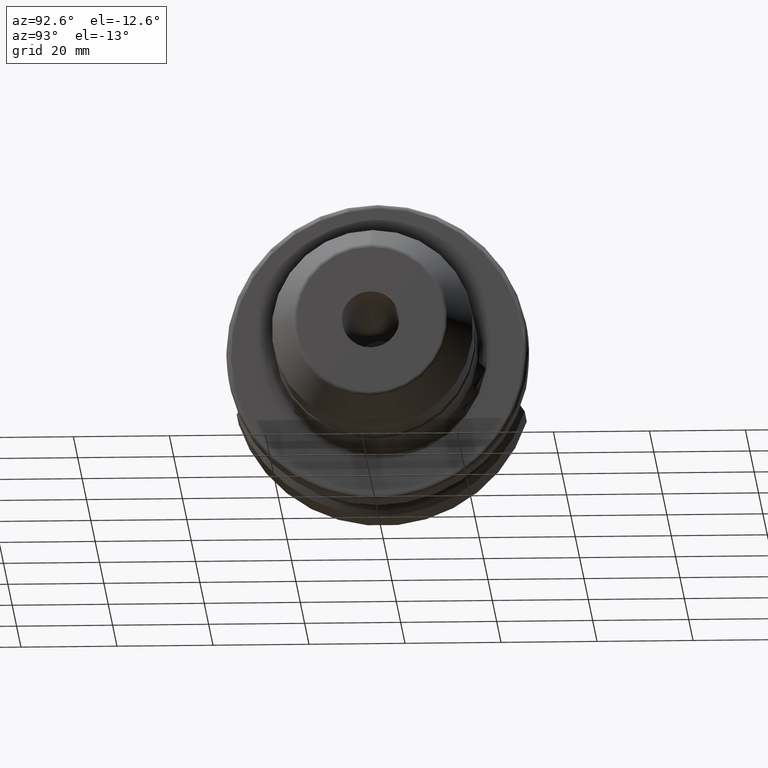
[diagram: clean part render]
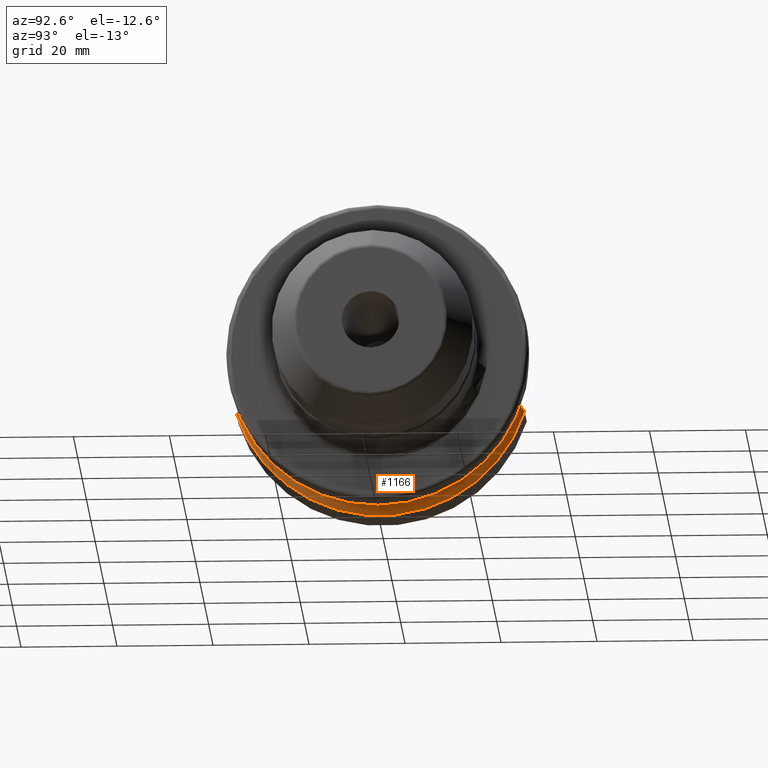
[diagram: same view with one face highlighted and labeled with its STEP entity id]
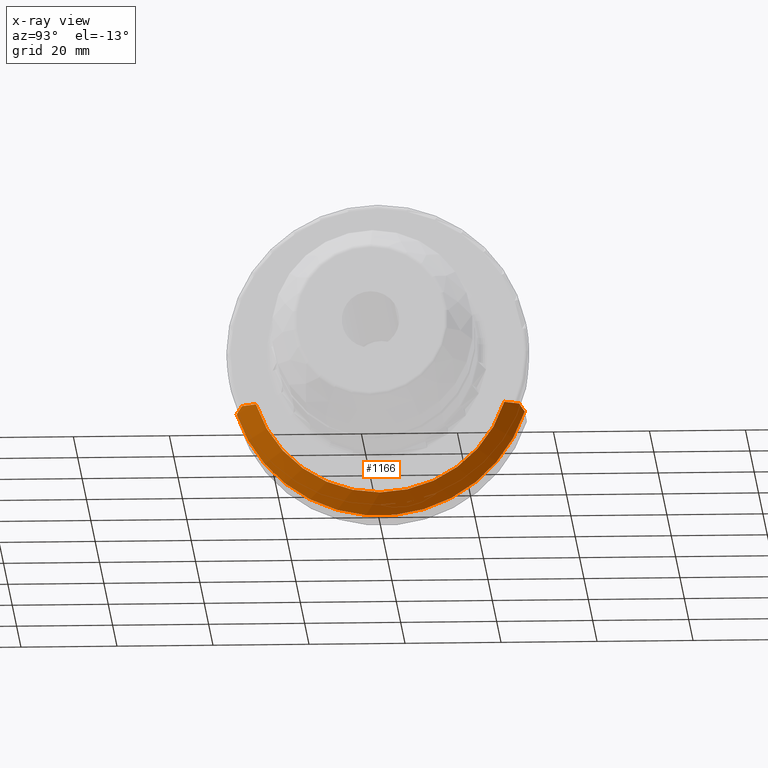
[diagram: x-ray of the same camera — body ghosted, the highlighted face saturated]
A machine part, auxiliary view. The second image highlights one B-rep face of the part: STEP entity #1166.
The next image is the same camera in x-ray: the body ghosted, the highlighted face saturated — about 0% of this face is hidden behind the body in this view.
In plain terms, the highlighted conical surface has half-angle 60.125 deg.
Its self-contained STEP definition (entity closure, byte-faithful):
#15=(
BOUNDED_CURVE()
B_SPLINE_CURVE(2,(#1988,#1989,#1990),.UNSPECIFIED.,.F.,.F.)
B_SPLINE_CURVE_WITH_KNOTS((3,3),(0.,0.199960249921199),.UNSPECIFIED.)
CURVE()
GEOMETRIC_REPRESENTATION_ITEM()
RATIONAL_B_SPLINE_CURVE((1.,1.00151196517195,1.00204724221686))
REPRESENTATION_ITEM('')
);
#18=(
BOUNDED_CURVE()
B_SPLINE_CURVE(2,(#2137,#2138,#2139),.UNSPECIFIED.,.F.,.F.)
B_SPLINE_CURVE_WITH_KNOTS((3,3),(0.419137956116462,0.619098206037661),
 .UNSPECIFIED.)
CURVE()
GEOMETRIC_REPRESENTATION_ITEM()
RATIONAL_B_SPLINE_CURVE((1.00204724221686,1.00151196517195,1.))
REPRESENTATION_ITEM('')
);
#19=(
BOUNDED_CURVE()
B_SPLINE_CURVE(2,(#2143,#2144,#2145),.UNSPECIFIED.,.F.,.F.)
B_SPLINE_CURVE_WITH_KNOTS((3,3),(0.173905198239554,0.523582790832813),
 .UNSPECIFIED.)
CURVE()
GEOMETRIC_REPRESENTATION_ITEM()
RATIONAL_B_SPLINE_CURVE((1.00136360040299,1.00205272099915,1.))
REPRESENTATION_ITEM('')
);
#20=(
BOUNDED_CURVE()
B_SPLINE_CURVE(2,(#2148,#2149,#2150),.UNSPECIFIED.,.F.,.F.)
B_SPLINE_CURVE_WITH_KNOTS((3,3),(0.,0.349677592593259),.UNSPECIFIED.)
CURVE()
GEOMETRIC_REPRESENTATION_ITEM()
RATIONAL_B_SPLINE_CURVE((1.,1.00205272099915,1.00136360040299))
REPRESENTATION_ITEM('')
);
#54=CONICAL_SURFACE('',#1305,29.2970358274569,1.04937921276159);
#143=FACE_OUTER_BOUND('',#219,.T.);
#219=EDGE_LOOP('',(#910,#911,#912,#913,#914,#915));
#425=CIRCLE('',#1290,31.5000000000001);
#432=CIRCLE('',#1306,27.0940716549138);
#506=VERTEX_POINT('',#1985);
#507=VERTEX_POINT('',#1987);
#510=VERTEX_POINT('',#1997);
#528=VERTEX_POINT('',#2136);
#529=VERTEX_POINT('',#2142);
#530=VERTEX_POINT('',#2146);
#638=EDGE_CURVE('',#506,#507,#15,.T.);
#643=EDGE_CURVE('',#506,#510,#425,.T.);
#668=EDGE_CURVE('',#528,#510,#18,.T.);
#670=EDGE_CURVE('',#528,#529,#19,.T.);
#671=EDGE_CURVE('',#530,#529,#432,.T.);
#672=EDGE_CURVE('',#530,#507,#20,.T.);
#910=ORIENTED_EDGE('',*,*,#638,.F.);
#911=ORIENTED_EDGE('',*,*,#643,.T.);
#912=ORIENTED_EDGE('',*,*,#668,.F.);
#913=ORIENTED_EDGE('',*,*,#670,.T.);
#914=ORIENTED_EDGE('',*,*,#671,.F.);
#915=ORIENTED_EDGE('',*,*,#672,.T.);
#1166=ADVANCED_FACE('',(#143),#54,.T.);
#1290=AXIS2_PLACEMENT_3D('',#1999,#1521,#1522);
#1305=AXIS2_PLACEMENT_3D('',#2141,#1563,#1564);
#1306=AXIS2_PLACEMENT_3D('',#2147,#1565,#1566);
#1521=DIRECTION('center_axis',(1.,0.,0.));
#1522=DIRECTION('ref_axis',(0.,0.,-1.));
#1563=DIRECTION('center_axis',(-1.,0.,0.));
#1564=DIRECTION('ref_axis',(0.,1.,0.));
#1565=DIRECTION('center_axis',(1.,0.,0.));
#1566=DIRECTION('ref_axis',(0.,0.,-1.));
#1985=CARTESIAN_POINT('',(11.5690363073381,-30.0059801089944,-9.58598757033588));
#1987=CARTESIAN_POINT('',(12.4560255586892,-28.8540227227866,-8.05));
#1988=CARTESIAN_POINT('Ctrl Pts',(11.5690363073381,-30.0059801089944,-9.58598757033589));
#1989=CARTESIAN_POINT('Ctrl Pts',(12.0297591827714,-29.4155299486053,-8.79869793782082));
#1990=CARTESIAN_POINT('Ctrl Pts',(12.4560255586892,-28.8540227227866,-8.05));
#1997=CARTESIAN_POINT('',(11.5690363073381,30.0059801089944,-9.58598757033588));
#1999=CARTESIAN_POINT('Origin',(11.5690363073381,0.,0.));
#2136=CARTESIAN_POINT('',(12.4560255586892,28.8540227227866,-8.05));
#2137=CARTESIAN_POINT('Ctrl Pts',(12.4560255586892,28.8540227227866,-8.05));
#2138=CARTESIAN_POINT('Ctrl Pts',(12.0297591827714,29.4155299486053,-8.79869793782082));
#2139=CARTESIAN_POINT('Ctrl Pts',(11.5690363073381,30.0059801089944,-9.58598757033589));
#2141=CARTESIAN_POINT('Origin',(12.8345181536691,0.,0.));
#2142=CARTESIAN_POINT('',(14.1,25.8705666509569,-8.05));
#2143=CARTESIAN_POINT('Ctrl Pts',(12.4560255586892,28.8540227227866,-8.05));
#2144=CARTESIAN_POINT('Ctrl Pts',(13.3228255918789,27.2874638426469,-8.05));
#2145=CARTESIAN_POINT('Ctrl Pts',(14.1,25.8705666509569,-8.05));
#2146=CARTESIAN_POINT('',(14.1,-25.8705666509569,-8.05));
#2147=CARTESIAN_POINT('Origin',(14.1,0.,0.));
#2148=CARTESIAN_POINT('Ctrl Pts',(14.1,-25.8705666509569,-8.05));
#2149=CARTESIAN_POINT('Ctrl Pts',(13.3228255918789,-27.2874638426469,-8.05));
#2150=CARTESIAN_POINT('Ctrl Pts',(12.4560255586892,-28.8540227227866,-8.05));